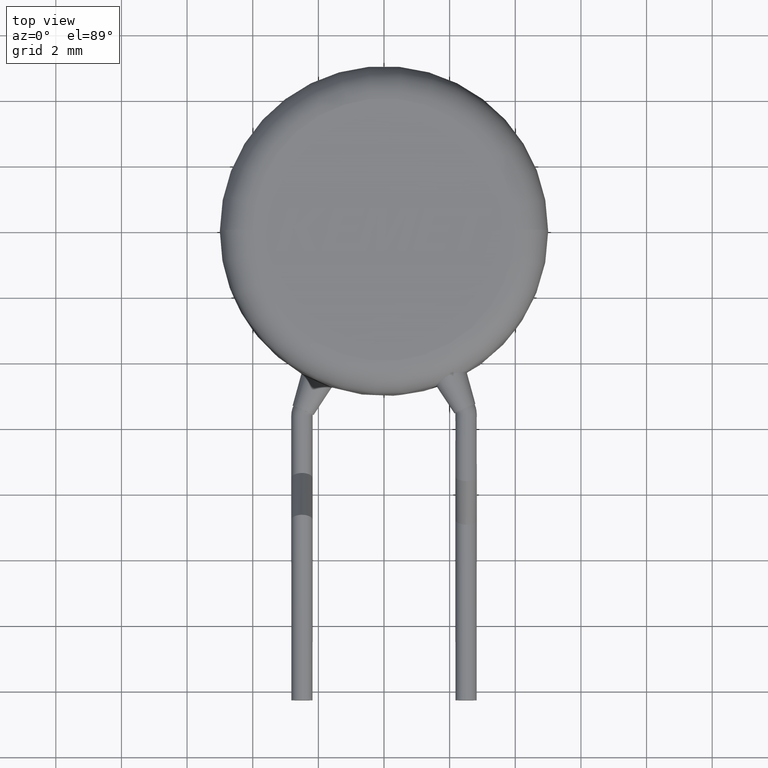
[diagram: clean part render]
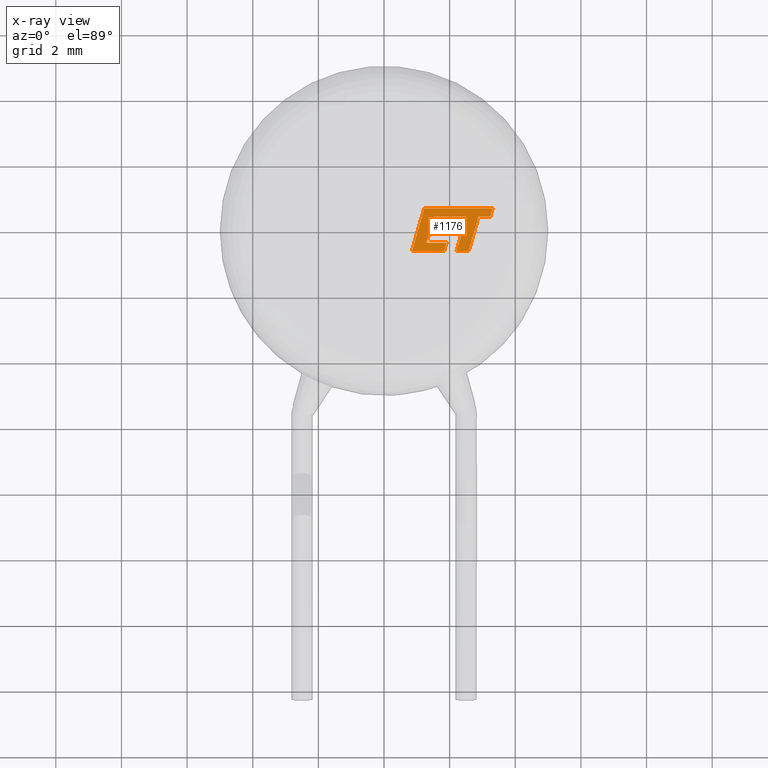
[diagram: x-ray — body ghosted, one internal face saturated and labeled with its STEP entity id]
A machine part, top view, then the same camera in x-ray: the body is ghosted and one INTERNAL B-rep face — a face not visible from any outside direction — is saturated and labeled: STEP entity #1176.
In plain terms, the highlighted planar face has unit normal (0, 0, 1).
Its self-contained STEP definition (entity closure, byte-faithful):
#80 = DIRECTION ( 'NONE',  ( 0.2745159998572679300, 0.9615825319869140100, 0.0000000000000000000 ) ) ;
#115 = VECTOR ( 'NONE', #4185, 1000.000000000000100 ) ;
#162 = LINE ( 'NONE', #1882, #3373 ) ;
#217 = CARTESIAN_POINT ( 'NONE',  ( 1.833851102246887300, -0.6500008832987450600, 4.997772128840647800 ) ) ;
#218 = LINE ( 'NONE', #385, #3572 ) ;
#303 = CARTESIAN_POINT ( 'NONE',  ( 2.010246445143765800, 0.1582728440775656400, 4.997772128840647800 ) ) ;
#304 = VECTOR ( 'NONE', #3497, 1000.000000000000100 ) ;
#317 = CARTESIAN_POINT ( 'NONE',  ( 3.236134399099432900, 0.3958148344576058500, 4.997772128840647800 ) ) ;
#342 = LINE ( 'NONE', #827, #2403 ) ;
#385 = CARTESIAN_POINT ( 'NONE',  ( 2.512153462137105100, 0.3958430061823774400, 4.997772128840647800 ) ) ;
#454 = DIRECTION ( 'NONE',  ( 1.000000000000000000, 0.0000000000000000000, 0.0000000000000000000 ) ) ;
#465 = CARTESIAN_POINT ( 'NONE',  ( -0.05394957496046050300, -0.1657095736357620500, 4.997772128840647800 ) ) ;
#483 = VERTEX_POINT ( 'NONE', #3316 ) ;
#484 = DIRECTION ( 'NONE',  ( 1.000000000000000000, 0.0000000000000000000, 0.0000000000000000000 ) ) ;
#517 = VECTOR ( 'NONE', #1617, 1000.000000000000000 ) ;
#580 = DIRECTION ( 'NONE',  ( 1.000000000000000000, 2.372545677633579800E-016, 0.0000000000000000000 ) ) ;
#618 = EDGE_CURVE ( 'NONE', #2603, #4134, #4154, .T. ) ;
#695 = CARTESIAN_POINT ( 'NONE',  ( 1.385674516554936700, -0.08128747996182829300, 4.997772128840647800 ) ) ;
#773 = VERTEX_POINT ( 'NONE', #303 ) ;
#827 = CARTESIAN_POINT ( 'NONE',  ( 2.881275298532139000, 0.3958430061791437000, 4.997772128840647800 ) ) ;
#865 = VECTOR ( 'NONE', #1194, 1000.000000000000000 ) ;
#876 = FACE_OUTER_BOUND ( 'NONE', #1097, .T. ) ;
#879 = CARTESIAN_POINT ( 'NONE',  ( 1.524181905327295100, 0.3993464793695716800, 4.997772128840647800 ) ) ;
#896 = AXIS2_PLACEMENT_3D ( 'NONE', #465, #2731, #484 ) ;
#927 = EDGE_CURVE ( 'NONE', #3436, #2747, #2329, .T. ) ;
#993 = LINE ( 'NONE', #2464, #3511 ) ;
#1027 = VECTOR ( 'NONE', #80, 1000.000000000000000 ) ;
#1097 = EDGE_LOOP ( 'NONE', ( #1152, #3241, #1342, #2192, #3490, #1967, #2949, #3250, #3626, #2246, #3487, #2041, #4007, #1491, #2979, #1463, #4222 ) ) ;
#1152 = ORIENTED_EDGE ( 'NONE', *, *, #2382, .F. ) ;
#1176 = ADVANCED_FACE ( 'NONE', ( #876 ), #3710, .F. ) ;
#1177 = VECTOR ( 'NONE', #1824, 1000.000000000000100 ) ;
#1181 = LINE ( 'NONE', #3156, #865 ) ;
#1194 = DIRECTION ( 'NONE',  ( 0.2793947940814913700, 0.9601763114346036900, 0.0000000000000000000 ) ) ;
#1201 = DIRECTION ( 'NONE',  ( 0.2746918797667242100, 0.9615323037684295700, 0.0000000000000000000 ) ) ;
#1214 = LINE ( 'NONE', #3270, #2037 ) ;
#1309 = EDGE_CURVE ( 'NONE', #483, #4000, #1181, .T. ) ;
#1325 = VERTEX_POINT ( 'NONE', #2104 ) ;
#1339 = VECTOR ( 'NONE', #2200, 1000.000000000000000 ) ;
#1342 = ORIENTED_EDGE ( 'NONE', *, *, #3152, .F. ) ;
#1346 = LINE ( 'NONE', #1642, #2023 ) ;
#1373 = EDGE_CURVE ( 'NONE', #3074, #2706, #4048, .T. ) ;
#1400 = CARTESIAN_POINT ( 'NONE',  ( 1.524181905327295100, 0.3993464793695716800, 4.997772128840647800 ) ) ;
#1460 = EDGE_CURVE ( 'NONE', #4134, #3789, #162, .T. ) ;
#1463 = ORIENTED_EDGE ( 'NONE', *, *, #1895, .F. ) ;
#1481 = LINE ( 'NONE', #879, #304 ) ;
#1491 = ORIENTED_EDGE ( 'NONE', *, *, #3971, .F. ) ;
#1526 = VECTOR ( 'NONE', #2086, 1000.000000000000000 ) ;
#1544 = CARTESIAN_POINT ( 'NONE',  ( 1.941808520104738600, -0.08128747996182829300, 4.997772128840647800 ) ) ;
#1581 = CARTESIAN_POINT ( 'NONE',  ( 2.010246445143765800, 0.1582728440775656400, 4.997772128840647800 ) ) ;
#1617 = DIRECTION ( 'NONE',  ( -1.000000000000000000, 0.0000000000000000000, 0.0000000000000000000 ) ) ;
#1621 = VECTOR ( 'NONE', #2108, 1000.000000000000000 ) ;
#1642 = CARTESIAN_POINT ( 'NONE',  ( 2.580670205470432700, -0.6500008832987448400, 4.997772128840647800 ) ) ;
#1661 = CARTESIAN_POINT ( 'NONE',  ( 3.308060600162075400, 0.6460950318606393200, 4.997772128840647800 ) ) ;
#1741 = VECTOR ( 'NONE', #3197, 1000.000000000000000 ) ;
#1809 = EDGE_CURVE ( 'NONE', #1325, #2550, #2391, .T. ) ;
#1817 = EDGE_CURVE ( 'NONE', #4052, #3436, #4175, .T. ) ;
#1824 = DIRECTION ( 'NONE',  ( -0.2764273280489769600, -0.9610348236706635100, 0.0000000000000000000 ) ) ;
#1838 = DIRECTION ( 'NONE',  ( 0.9999999968487352000, -7.938847109726309400E-005, 0.0000000000000000000 ) ) ;
#1882 = CARTESIAN_POINT ( 'NONE',  ( 0.8546126124578451400, -0.6500008832987451700, 4.997772128840647800 ) ) ;
#1895 = EDGE_CURVE ( 'NONE', #2706, #1325, #218, .T. ) ;
#1898 = VERTEX_POINT ( 'NONE', #1661 ) ;
#1967 = ORIENTED_EDGE ( 'NONE', *, *, #927, .F. ) ;
#2023 = VECTOR ( 'NONE', #2950, 1000.000000000000100 ) ;
#2037 = VECTOR ( 'NONE', #454, 1000.000000000000000 ) ;
#2041 = ORIENTED_EDGE ( 'NONE', *, *, #3533, .F. ) ;
#2086 = DIRECTION ( 'NONE',  ( 0.2729786930695146100, 0.9620200793798743300, 0.0000000000000000000 ) ) ;
#2104 = CARTESIAN_POINT ( 'NONE',  ( 2.211461668950883000, -0.6500008832987450600, 4.997772128840647800 ) ) ;
#2108 = DIRECTION ( 'NONE',  ( -1.000000000000000000, -1.609761701859478100E-016, 0.0000000000000000000 ) ) ;
#2182 = CARTESIAN_POINT ( 'NONE',  ( 2.512153462137105100, 0.3958430061823774400, 4.997772128840647800 ) ) ;
#2192 = ORIENTED_EDGE ( 'NONE', *, *, #4125, .F. ) ;
#2200 = DIRECTION ( 'NONE',  ( -1.000000000000000000, 0.0000000000000000000, 0.0000000000000000000 ) ) ;
#2209 = CARTESIAN_POINT ( 'NONE',  ( 2.211461668950883000, -0.6500008832987450600, 4.997772128840647800 ) ) ;
#2246 = ORIENTED_EDGE ( 'NONE', *, *, #618, .F. ) ;
#2307 = LINE ( 'NONE', #217, #1526 ) ;
#2329 = LINE ( 'NONE', #2692, #1027 ) ;
#2382 = EDGE_CURVE ( 'NONE', #4000, #3074, #1481, .T. ) ;
#2391 = LINE ( 'NONE', #2209, #1741 ) ;
#2394 = VERTEX_POINT ( 'NONE', #2824 ) ;
#2403 = VECTOR ( 'NONE', #1838, 1000.000000000000200 ) ;
#2431 = CARTESIAN_POINT ( 'NONE',  ( 1.227415264243417100, 0.6460950318606388800, 4.997772128840647800 ) ) ;
#2464 = CARTESIAN_POINT ( 'NONE',  ( 3.236134399099432900, 0.3958148344576058500, 4.997772128840647800 ) ) ;
#2473 = CARTESIAN_POINT ( 'NONE',  ( 1.903833865856176400, -0.4033705582517734300, 4.997772128840647800 ) ) ;
#2537 = CARTESIAN_POINT ( 'NONE',  ( 2.189581711462585300, 0.6460950318606393200, 4.997772128840647800 ) ) ;
#2550 = VERTEX_POINT ( 'NONE', #2748 ) ;
#2603 = VERTEX_POINT ( 'NONE', #2431 ) ;
#2611 = EDGE_CURVE ( 'NONE', #3789, #4052, #2307, .T. ) ;
#2626 = VECTOR ( 'NONE', #1201, 1000.000000000000000 ) ;
#2658 = VERTEX_POINT ( 'NONE', #317 ) ;
#2692 = CARTESIAN_POINT ( 'NONE',  ( 1.293725094292476500, -0.4033705582517734300, 4.997772128840647800 ) ) ;
#2706 = VERTEX_POINT ( 'NONE', #2182 ) ;
#2731 = DIRECTION ( 'NONE',  ( 0.0000000000000000000, 0.0000000000000000000, 1.000000000000000000 ) ) ;
#2747 = VERTEX_POINT ( 'NONE', #695 ) ;
#2748 = CARTESIAN_POINT ( 'NONE',  ( 2.580670205470432700, -0.6500008832987448400, 4.997772128840647800 ) ) ;
#2769 = DIRECTION ( 'NONE',  ( 0.2762033010288721400, 0.9610992334305309400, 0.0000000000000000000 ) ) ;
#2824 = CARTESIAN_POINT ( 'NONE',  ( 2.881275298532139000, 0.3958430061791437000, 4.997772128840647800 ) ) ;
#2890 = CARTESIAN_POINT ( 'NONE',  ( 0.8546126124578451400, -0.6500008832987451700, 4.997772128840647800 ) ) ;
#2921 = CARTESIAN_POINT ( 'NONE',  ( 2.118125044707421800, 0.3976755315275807300, 4.997772128840647800 ) ) ;
#2928 = LINE ( 'NONE', #1544, #2626 ) ;
#2949 = ORIENTED_EDGE ( 'NONE', *, *, #1817, .F. ) ;
#2950 = DIRECTION ( 'NONE',  ( 0.2762437428917322600, 0.9610876102172821700, 0.0000000000000000000 ) ) ;
#2965 = CARTESIAN_POINT ( 'NONE',  ( 1.833851102246887300, -0.6500008832987450600, 4.997772128840647800 ) ) ;
#2979 = ORIENTED_EDGE ( 'NONE', *, *, #1809, .F. ) ;
#3074 = VERTEX_POINT ( 'NONE', #2921 ) ;
#3089 = EDGE_CURVE ( 'NONE', #2747, #3904, #1214, .T. ) ;
#3144 = EDGE_CURVE ( 'NONE', #1898, #2603, #3429, .T. ) ;
#3152 = EDGE_CURVE ( 'NONE', #773, #483, #3324, .T. ) ;
#3156 = CARTESIAN_POINT ( 'NONE',  ( 1.454033623299538300, 0.1582728440775656400, 4.997772128840647800 ) ) ;
#3175 = CARTESIAN_POINT ( 'NONE',  ( 1.227415264243417100, 0.6460950318606388800, 4.997772128840647800 ) ) ;
#3197 = DIRECTION ( 'NONE',  ( 1.000000000000000000, 4.195078239924725600E-016, 0.0000000000000000000 ) ) ;
#3241 = ORIENTED_EDGE ( 'NONE', *, *, #1309, .F. ) ;
#3250 = ORIENTED_EDGE ( 'NONE', *, *, #2611, .F. ) ;
#3270 = CARTESIAN_POINT ( 'NONE',  ( 1.385674516554936700, -0.08128747996182829300, 4.997772128840647800 ) ) ;
#3316 = CARTESIAN_POINT ( 'NONE',  ( 1.454033623299538300, 0.1582728440775656400, 4.997772128840647800 ) ) ;
#3324 = LINE ( 'NONE', #1581, #517 ) ;
#3373 = VECTOR ( 'NONE', #580, 1000.000000000000000 ) ;
#3429 = LINE ( 'NONE', #2537, #1621 ) ;
#3436 = VERTEX_POINT ( 'NONE', #4163 ) ;
#3487 = ORIENTED_EDGE ( 'NONE', *, *, #3144, .F. ) ;
#3490 = ORIENTED_EDGE ( 'NONE', *, *, #3089, .F. ) ;
#3497 = DIRECTION ( 'NONE',  ( 0.9999960426590095400, -0.002813301676022934900, 0.0000000000000000000 ) ) ;
#3511 = VECTOR ( 'NONE', #2769, 1000.000000000000000 ) ;
#3533 = EDGE_CURVE ( 'NONE', #2658, #1898, #993, .T. ) ;
#3572 = VECTOR ( 'NONE', #3623, 999.9999999999998900 ) ;
#3604 = EDGE_CURVE ( 'NONE', #2394, #2658, #342, .T. ) ;
#3623 = DIRECTION ( 'NONE',  ( -0.2763173343569930700, -0.9610664548998918400, 0.0000000000000000000 ) ) ;
#3626 = ORIENTED_EDGE ( 'NONE', *, *, #1460, .F. ) ;
#3710 = PLANE ( 'NONE',  #896 ) ;
#3720 = CARTESIAN_POINT ( 'NONE',  ( 1.941808520104738600, -0.08128747996182829300, 4.997772128840647800 ) ) ;
#3789 = VERTEX_POINT ( 'NONE', #2965 ) ;
#3847 = CARTESIAN_POINT ( 'NONE',  ( 1.903833865856176400, -0.4033705582517734300, 4.997772128840647800 ) ) ;
#3848 = CARTESIAN_POINT ( 'NONE',  ( 2.118125044707421800, 0.3976755315275807300, 4.997772128840647800 ) ) ;
#3904 = VERTEX_POINT ( 'NONE', #3720 ) ;
#3971 = EDGE_CURVE ( 'NONE', #2550, #2394, #1346, .T. ) ;
#4000 = VERTEX_POINT ( 'NONE', #1400 ) ;
#4007 = ORIENTED_EDGE ( 'NONE', *, *, #3604, .F. ) ;
#4048 = LINE ( 'NONE', #3848, #115 ) ;
#4052 = VERTEX_POINT ( 'NONE', #2473 ) ;
#4125 = EDGE_CURVE ( 'NONE', #3904, #773, #2928, .T. ) ;
#4134 = VERTEX_POINT ( 'NONE', #2890 ) ;
#4154 = LINE ( 'NONE', #3175, #1177 ) ;
#4163 = CARTESIAN_POINT ( 'NONE',  ( 1.293725094292476500, -0.4033705582517734300, 4.997772128840647800 ) ) ;
#4175 = LINE ( 'NONE', #3847, #1339 ) ;
#4185 = DIRECTION ( 'NONE',  ( 0.9999891854650020400, -0.004650693823678543800, 0.0000000000000000000 ) ) ;
#4222 = ORIENTED_EDGE ( 'NONE', *, *, #1373, .F. ) ;